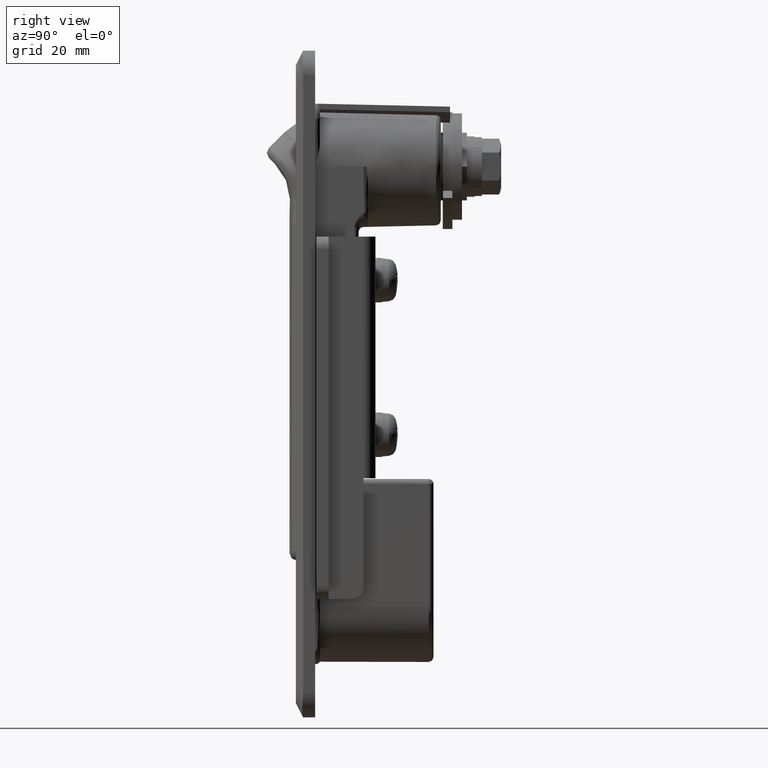
[diagram: clean part render]
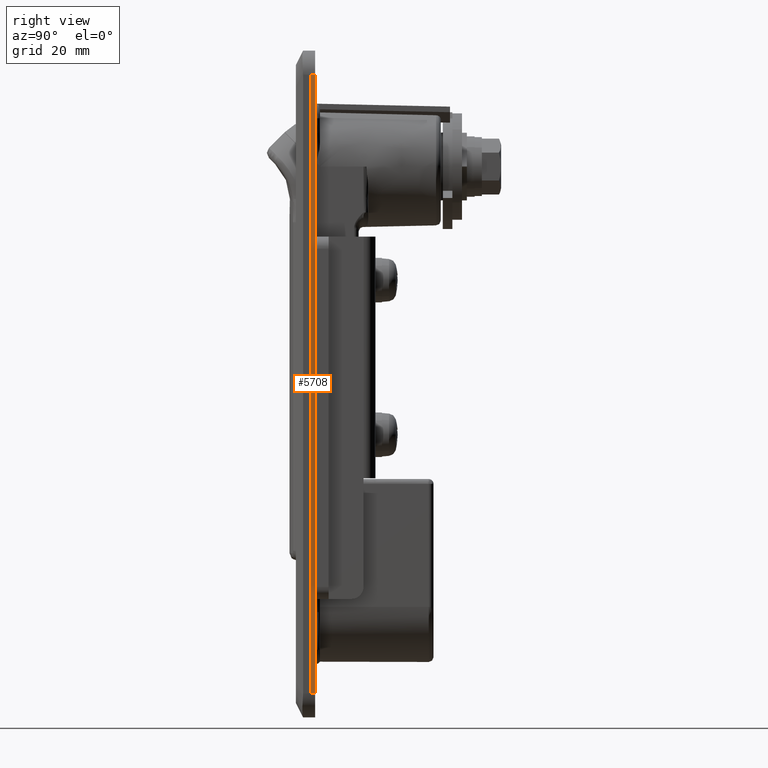
[diagram: same view with one face highlighted and labeled with its STEP entity id]
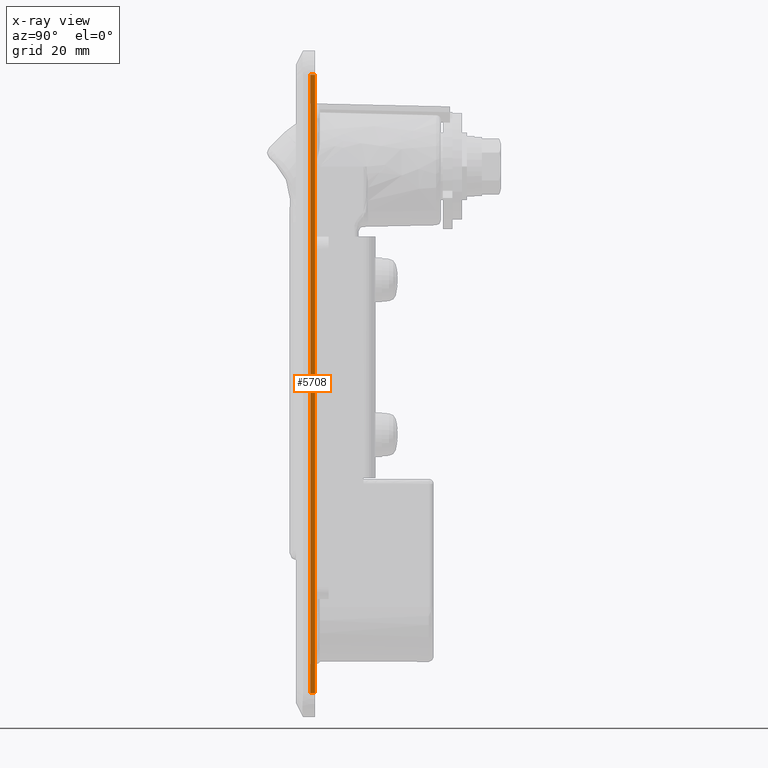
[diagram: x-ray of the same camera — body ghosted, the highlighted face saturated]
A machine part, right view. The second image highlights one B-rep face of the part: STEP entity #5708.
The next image is the same camera in x-ray: the body ghosted, the highlighted face saturated — about 0% of this face is hidden behind the body in this view.
In plain terms, the highlighted face is a freeform B-spline surface patch.
Its self-contained STEP definition (entity closure, byte-faithful):
#5264=CARTESIAN_POINT('',(2.999999999999890,-15.997000000000000,-109.0));
#5265=VERTEX_POINT('',#5264);
#5279=CARTESIAN_POINT('',(2.999999999999890,-15.997000000000000,19.0));
#5280=VERTEX_POINT('',#5279);
#5281=CARTESIAN_POINT('',(2.999999999999890,-15.997000000000000,19.0));
#5282=CARTESIAN_POINT('',(2.999999999999890,-15.997000000000000,-109.0));
#5283=QUASI_UNIFORM_CURVE('',1,(#5281,#5282),.UNSPECIFIED.,.F.,.U.);
#5284=EDGE_CURVE('',#5280,#5265,#5283,.T.);
#5399=CARTESIAN_POINT('',(3.999999999999895,-15.997000000000000,19.0));
#5400=VERTEX_POINT('',#5399);
#5414=CARTESIAN_POINT('',(3.999999999999895,-15.997000000000000,-109.0));
#5415=VERTEX_POINT('',#5414);
#5416=CARTESIAN_POINT('',(3.999999999999895,-15.997000000000000,19.0));
#5417=CARTESIAN_POINT('',(3.999999999999895,-15.997000000000000,-109.0));
#5418=QUASI_UNIFORM_CURVE('',1,(#5416,#5417),.UNSPECIFIED.,.F.,.U.);
#5419=EDGE_CURVE('',#5400,#5415,#5418,.T.);
#5685=CARTESIAN_POINT('',(3.999999999999895,-15.997000000000000,-109.0));
#5686=CARTESIAN_POINT('',(2.999999999999890,-15.997000000000000,-109.0));
#5687=QUASI_UNIFORM_CURVE('',1,(#5685,#5686),.UNSPECIFIED.,.F.,.U.);
#5688=EDGE_CURVE('',#5415,#5265,#5687,.T.);
#5693=CARTESIAN_POINT('',(2.950050001938084,-15.997000000000000,-115.393599751911200));
#5694=CARTESIAN_POINT('',(2.950050001938084,-15.997000000000000,25.393603185138701));
#5695=CARTESIAN_POINT('',(4.049950024883793,-15.997000000000000,-115.393599751911200));
#5696=CARTESIAN_POINT('',(4.049950024883793,-15.997000000000000,25.393603185138701));
#5697=B_SPLINE_SURFACE_WITH_KNOTS('',1,1,((#5693,#5695),(#5694,#5696)),.UNSPECIFIED.,.F.,.F.,.U.,(2,2),(2,2),(0.0,140.787202937049900),(0.041708334948495,0.958291687403247),.UNSPECIFIED.);
#5698=ORIENTED_EDGE('',*,*,#5284,.T.);
#5699=ORIENTED_EDGE('',*,*,#5688,.F.);
#5700=ORIENTED_EDGE('',*,*,#5419,.F.);
#5701=CARTESIAN_POINT('',(3.999999999999895,-15.997000000000000,19.0));
#5702=CARTESIAN_POINT('',(2.999999999999890,-15.997000000000000,19.0));
#5703=QUASI_UNIFORM_CURVE('',1,(#5701,#5702),.UNSPECIFIED.,.F.,.U.);
#5704=EDGE_CURVE('',#5400,#5280,#5703,.T.);
#5705=ORIENTED_EDGE('',*,*,#5704,.T.);
#5706=EDGE_LOOP('',(#5698,#5699,#5700,#5705));
#5707=FACE_OUTER_BOUND('',#5706,.T.);
#5708=ADVANCED_FACE('',(#5707),#5697,.F.);